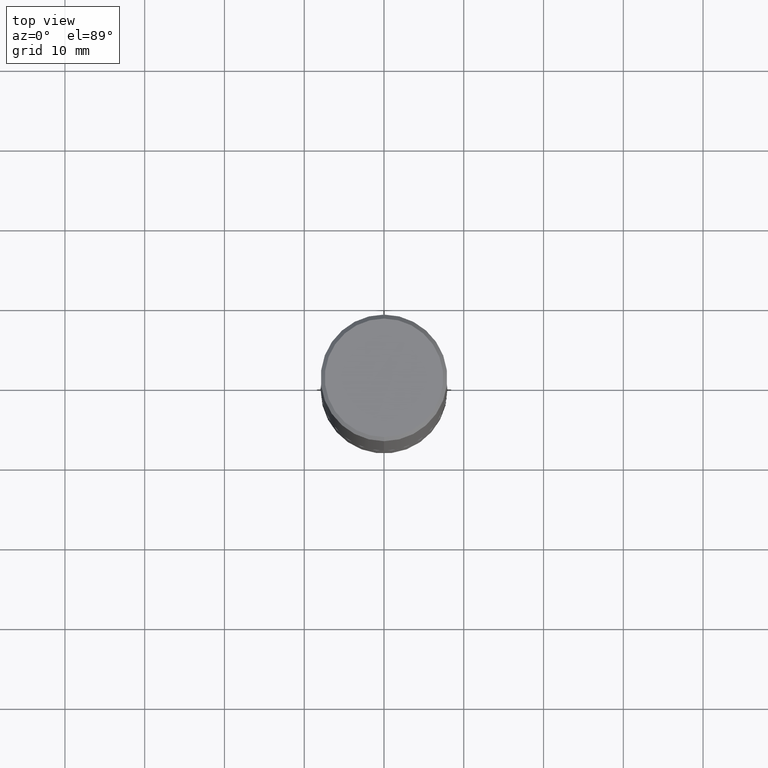
[diagram: clean part render]
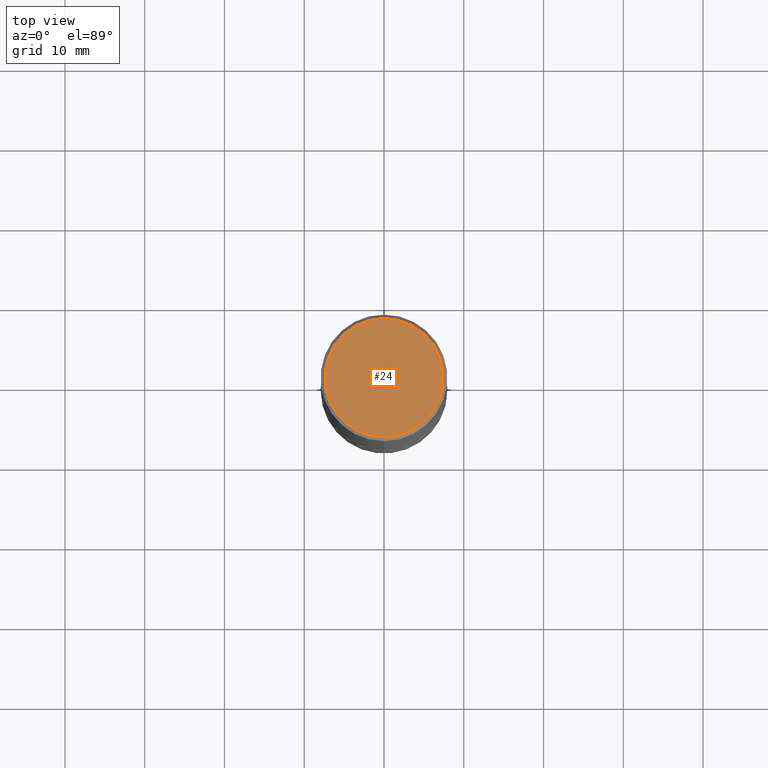
[diagram: same view with one face highlighted and labeled with its STEP entity id]
A machine part, top view. The second image highlights one B-rep face of the part: STEP entity #24.
In plain terms, the highlighted planar face has unit normal (0, -0, -1).
Its self-contained STEP definition (entity closure, byte-faithful):
#7 = AXIS2_PLACEMENT_3D ( 'NONE', #149, #308, #369 ) ;
#24 = ADVANCED_FACE ( 'NONE', ( #312 ), #88, .F. ) ;
#25 = DIRECTION ( 'NONE',  ( -6.982962677686266711E-15, -1.000000000000000000, 3.492442925969092620E-15 ) ) ;
#81 = EDGE_CURVE ( 'NONE', #363, #341, #192, .T. ) ;
#88 = PLANE ( 'NONE',  #346 ) ;
#109 = EDGE_LOOP ( 'NONE', ( #297, #273 ) ) ;
#149 = CARTESIAN_POINT ( 'NONE',  ( -1.989649451711856503E-45, 2.842254880443227287E-31, 8.138300154624720232E-17 ) ) ;
#158 = EDGE_CURVE ( 'NONE', #341, #363, #231, .T. ) ;
#182 = DIRECTION ( 'NONE',  ( 6.982962677686265922E-15, 1.000000000000000000, -3.492442925969092620E-15 ) ) ;
#192 = CIRCLE ( 'NONE', #7, 0.2924999999999997602 ) ;
#200 = CARTESIAN_POINT ( 'NONE',  ( -2.075300644325886704E-15, -0.2924999999999997602, 1.102922557392206019E-15 ) ) ;
#223 = DIRECTION ( 'NONE',  ( -2.444797333483953649E-29, 3.492442925969092226E-15, 1.000000000000000000 ) ) ;
#224 = AXIS2_PLACEMENT_3D ( 'NONE', #250, #223, #25 ) ;
#231 = CIRCLE ( 'NONE', #224, 0.2924999999999997602 ) ;
#250 = CARTESIAN_POINT ( 'NONE',  ( -1.989649451711856503E-45, 2.842254880443227287E-31, 8.138300154624720232E-17 ) ) ;
#273 = ORIENTED_EDGE ( 'NONE', *, *, #158, .T. ) ;
#297 = ORIENTED_EDGE ( 'NONE', *, *, #81, .T. ) ;
#302 = DIRECTION ( 'NONE',  ( 2.444797333483953089E-29, -3.492442925969092620E-15, -1.000000000000000000 ) ) ;
#308 = DIRECTION ( 'NONE',  ( -2.444797333483953649E-29, 3.492442925969092226E-15, 1.000000000000000000 ) ) ;
#312 = FACE_OUTER_BOUND ( 'NONE', #109, .T. ) ;
#320 = CARTESIAN_POINT ( 'NONE',  ( 2.112346210000094260E-15, 0.2924999999999997602, -9.401565542997115154E-16 ) ) ;
#341 = VERTEX_POINT ( 'NONE', #200 ) ;
#346 = AXIS2_PLACEMENT_3D ( 'NONE', #399, #302, #182 ) ;
#363 = VERTEX_POINT ( 'NONE', #320 ) ;
#369 = DIRECTION ( 'NONE',  ( -6.982962677686266711E-15, -1.000000000000000000, 3.492442925969092620E-15 ) ) ;
#399 = CARTESIAN_POINT ( 'NONE',  ( 2.042516583223231356E-15, 0.2924999999999997602, -9.808480550728350426E-16 ) ) ;